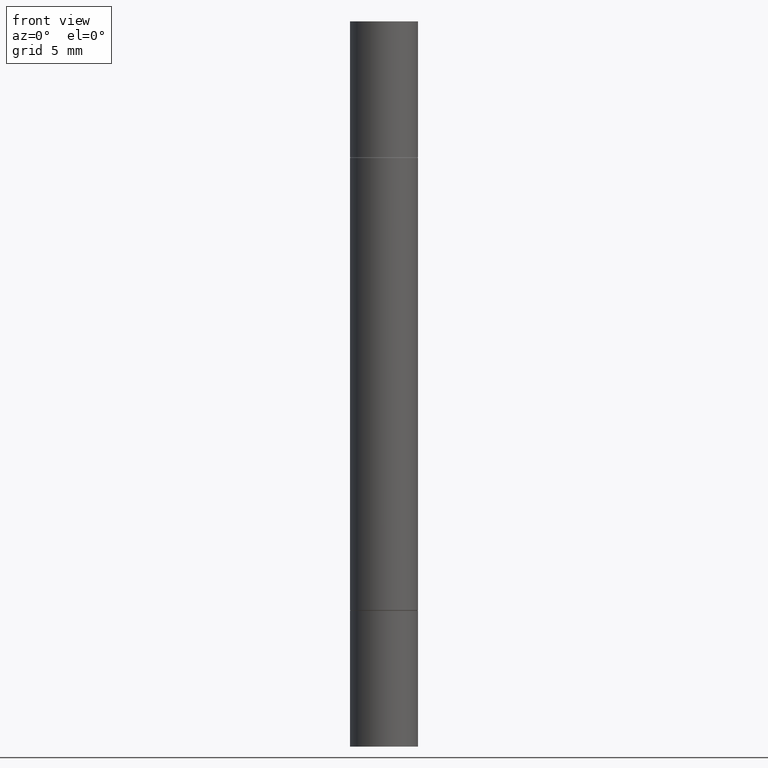
[diagram: clean part render]
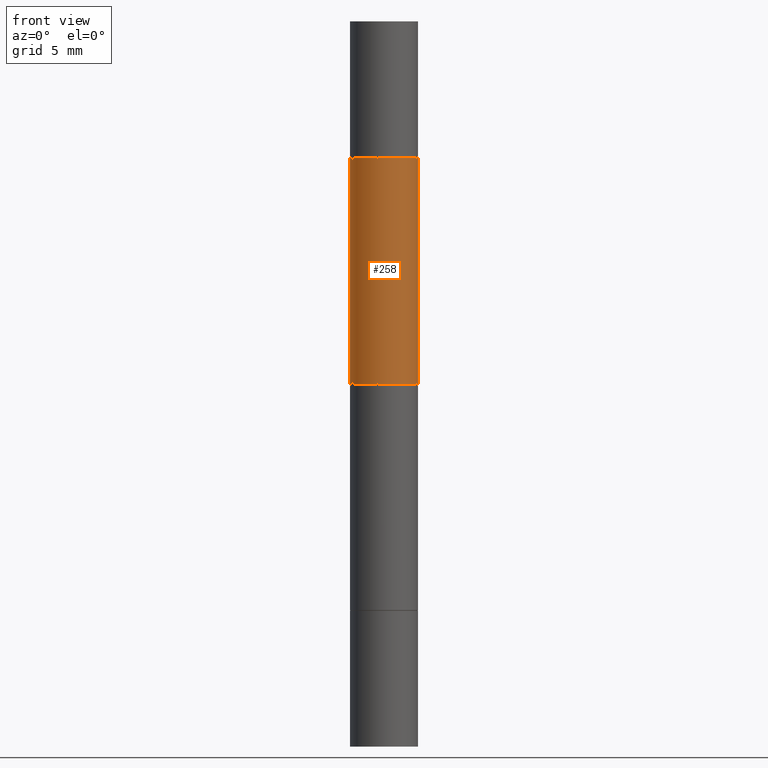
[diagram: same view with one face highlighted and labeled with its STEP entity id]
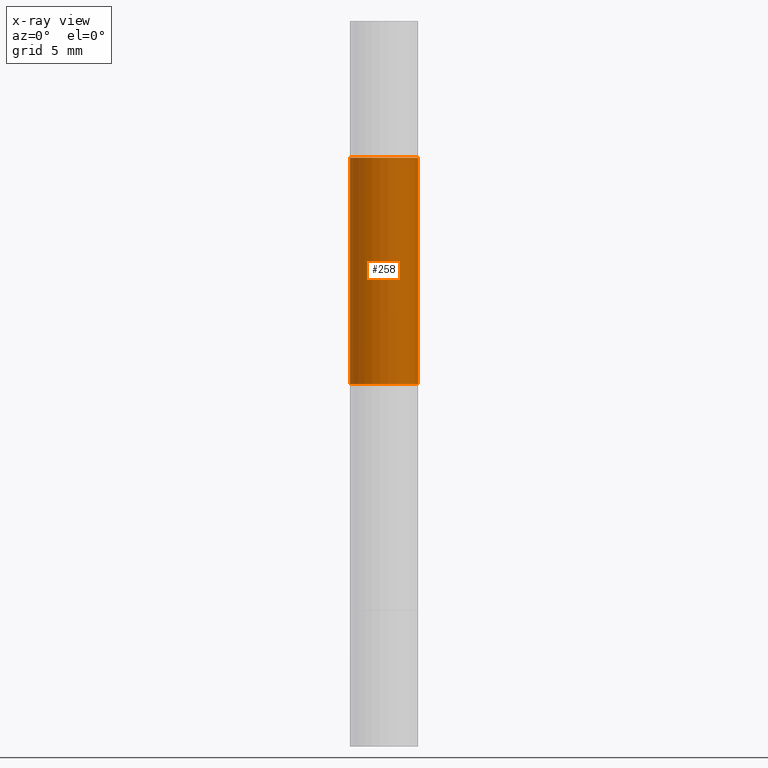
[diagram: x-ray of the same camera — body ghosted, the highlighted face saturated]
A machine part, front view. The second image highlights one B-rep face of the part: STEP entity #258.
The next image is the same camera in x-ray: the body ghosted, the highlighted face saturated — about 0% of this face is hidden behind the body in this view.
In plain terms, the highlighted cylindrical surface (edge-blend (fillet) strip) has radius 2.3812 mm, axis along (-0, -0, -1).
Its self-contained STEP definition (entity closure, byte-faithful):
#67 = AXIS2_PLACEMENT_3D ( 'NONE', #615, #143, #553 ) ;
#75 = ORIENTED_EDGE ( 'NONE', *, *, #607, .F. ) ;
#85 = EDGE_CURVE ( 'NONE', #501, #243, #239, .T. ) ;
#109 = CARTESIAN_POINT ( 'NONE',  ( 0.09374999999999990286, -7.639024501427984975E-15, -1.999999999999999778 ) ) ;
#143 = DIRECTION ( 'NONE',  ( -2.445468806185136597E-29, -3.492890411551752677E-15, -1.000000000000000000 ) ) ;
#148 = VERTEX_POINT ( 'NONE', #327 ) ;
#166 = ORIENTED_EDGE ( 'NONE', *, *, #85, .F. ) ;
#171 = LINE ( 'NONE', #430, #251 ) ;
#195 = EDGE_CURVE ( 'NONE', #501, #588, #171, .T. ) ;
#202 = CARTESIAN_POINT ( 'NONE',  ( 3.971441341244661927E-29, -1.311917722034852351E-15, -0.3759999999999997788 ) ) ;
#224 = AXIS2_PLACEMENT_3D ( 'NONE', #202, #582, #594 ) ;
#239 = CIRCLE ( 'NONE', #224, 0.09375000000000002776 ) ;
#243 = VERTEX_POINT ( 'NONE', #508 ) ;
#246 = EDGE_CURVE ( 'NONE', #148, #588, #628, .T. ) ;
#251 = VECTOR ( 'NONE', #331, 39.37007874015748143 ) ;
#258 = ADVANCED_FACE ( 'NONE', ( #402 ), #567, .T. ) ;
#263 = VECTOR ( 'NONE', #590, 39.37007874015748143 ) ;
#327 = CARTESIAN_POINT ( 'NONE',  ( 0.09374999999999990286, -3.056352281472084301E-15, -0.9999999999999998890 ) ) ;
#330 = LINE ( 'NONE', #109, #263 ) ;
#331 = DIRECTION ( 'NONE',  ( -2.445468806185136877E-29, -3.492890411551753071E-15, -1.000000000000000000 ) ) ;
#353 = CARTESIAN_POINT ( 'NONE',  ( 2.445468806185136317E-29, -3.491481338843145188E-15, -0.9999999999999998890 ) ) ;
#357 = DIRECTION ( 'NONE',  ( 0.000000000000000000, 1.000000000000000000, -2.913971193241883922E-15 ) ) ;
#368 = CARTESIAN_POINT ( 'NONE',  ( -0.09375000000000002776, -6.687460347437705766E-16, -0.3759999999999997788 ) ) ;
#376 = ORIENTED_EDGE ( 'NONE', *, *, #246, .F. ) ;
#385 = CARTESIAN_POINT ( 'NONE',  ( -0.09374999999999990286, -1.758527843147917488E-15, -0.9999999999999998890 ) ) ;
#402 = FACE_OUTER_BOUND ( 'NONE', #495, .T. ) ;
#430 = CARTESIAN_POINT ( 'NONE',  ( -0.09374999999999990286, -6.341200063103816387E-15, -1.999999999999999778 ) ) ;
#495 = EDGE_LOOP ( 'NONE', ( #166, #516, #376, #75 ) ) ;
#501 = VERTEX_POINT ( 'NONE', #368 ) ;
#508 = CARTESIAN_POINT ( 'NONE',  ( 0.09375000000000002776, -1.966570473067939461E-15, -0.3759999999999997788 ) ) ;
#512 = DIRECTION ( 'NONE',  ( -0.000000000000000000, -3.492185875197449130E-15, -1.000000000000000000 ) ) ;
#516 = ORIENTED_EDGE ( 'NONE', *, *, #195, .T. ) ;
#553 = DIRECTION ( 'NONE',  ( 1.000000000000000000, -6.982962677686269866E-15, 0.000000000000000000 ) ) ;
#567 = CYLINDRICAL_SURFACE ( 'NONE', #67, 0.09374999999999990286 ) ;
#582 = DIRECTION ( 'NONE',  ( 2.445468806185136597E-29, 3.492890411551752677E-15, 1.000000000000000000 ) ) ;
#588 = VERTEX_POINT ( 'NONE', #385 ) ;
#590 = DIRECTION ( 'NONE',  ( -2.445468806185136877E-29, -3.492890411551753071E-15, -1.000000000000000000 ) ) ;
#594 = DIRECTION ( 'NONE',  ( 1.000000000000000000, -6.982962677686265922E-15, 0.000000000000000000 ) ) ;
#607 = EDGE_CURVE ( 'NONE', #243, #148, #330, .T. ) ;
#615 = CARTESIAN_POINT ( 'NONE',  ( 0.000000000000000000, -6.984371750394897471E-15, -1.999999999999999778 ) ) ;
#628 = CIRCLE ( 'NONE', #665, 0.09374999999999990286 ) ;
#665 = AXIS2_PLACEMENT_3D ( 'NONE', #353, #512, #357 ) ;